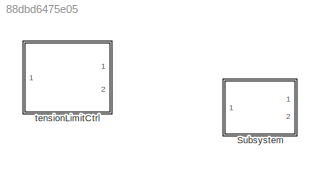
MODEL slx_88dbd6475e05
KIND library
CONFIG AbsTol = auto
CONFIG EnableMultiTasking = off
CONFIG FixedStep = auto
CONFIG MaxStep = auto
CONFIG MinStep = auto
CONFIG RelTol = 1e-3
CONFIG SampleTimeConstraint = Unconstrained
CONFIG SolverName = VariableStepAuto
CONFIG StartTime = 0.0
CONFIG StopTime = 10.0
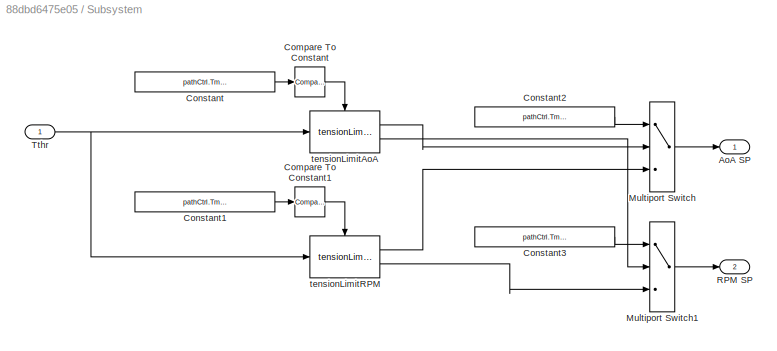
BLOCK [SubSystem] Subsystem
  Ports = [1, 2]
  RequestExecContextInheritance = off
BLOCK [Outport] Subsystem/AoA SP
BLOCK [Reference] Subsystem/Compare To Constant  REF=simulink/Logic and Bit
Operations/Compare
To Constant
  Ports = [1, 1]
  SourceBlock = simulink/Logic and Bit\nOperations/Compare\nTo Constant
  SourceProductBaseCode = SL
  SourceType = Compare To Constant
BLOCK [Reference] Subsystem/Compare To Constant1  REF=simulink/Logic and Bit
Operations/Compare
To Constant
  Ports = [1, 1]
  SourceBlock = simulink/Logic and Bit\nOperations/Compare\nTo Constant
  SourceProductBaseCode = SL
  SourceType = Compare To Constant
BLOCK [Constant] Subsystem/Constant
  Value = pathCtrl.TmaxCtrl.Value
BLOCK [Constant] Subsystem/Constant1
  Value = pathCtrl.TmaxCtrl.Value
BLOCK [Constant] Subsystem/Constant2
  Value = pathCtrl.TmaxCtrl.Value
BLOCK [Constant] Subsystem/Constant3
  Value = pathCtrl.TmaxCtrl.Value
BLOCK [MultiPortSwitch] Subsystem/Multiport Switch
  InputSameDT = off
  Inputs = 2
  Ports = [3, 1]
  SaturateOnIntegerOverflow = off
BLOCK [MultiPortSwitch] Subsystem/Multiport Switch1
  InputSameDT = off
  Inputs = 2
  Ports = [3, 1]
  SaturateOnIntegerOverflow = off
BLOCK [Outport] Subsystem/RPM SP
  Port = 2
BLOCK [Inport] Subsystem/Tthr
BLOCK [Reference] Subsystem/tensionLimitAoA  REF=tensionLimitAoA_cl/tensionLimitAoA
  Ports = [1, 2, 1]
  SourceBlock = tensionLimitAoA_cl/tensionLimitAoA
  SourceType = SubSystem
BLOCK [Reference] Subsystem/tensionLimitRPM  REF=tensionLimitRPM_cl/tensionLimitRPM
  Ports = [1, 2, 1]
  SourceBlock = tensionLimitRPM_cl/tensionLimitRPM
  SourceType = SubSystem
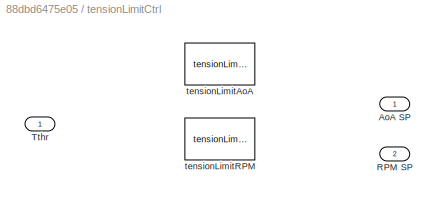
BLOCK [SubSystem] tensionLimitCtrl
  Ports = [1, 2]
  RequestExecContextInheritance = off
  Variant = on
BLOCK [Outport] tensionLimitCtrl/AoA SP
BLOCK [Outport] tensionLimitCtrl/RPM SP
  Port = 2
BLOCK [Inport] tensionLimitCtrl/Tthr
BLOCK [Reference] tensionLimitCtrl/tensionLimitAoA  REF=tensionLimitAoA_cl/tensionLimitAoA
  Ports = [1, 2, 1]
  SourceBlock = tensionLimitAoA_cl/tensionLimitAoA
  SourceType = SubSystem
BLOCK [Reference] tensionLimitCtrl/tensionLimitRPM  REF=tensionLimitRPM_cl/tensionLimitRPM
  Ports = [1, 2, 1]
  SourceBlock = tensionLimitRPM_cl/tensionLimitRPM
  SourceType = SubSystem
LINE Subsystem/Compare To Constant1:1 -> Subsystem/tensionLimitRPM:enable
LINE Subsystem/Compare To Constant:1 -> Subsystem/tensionLimitAoA:enable
LINE Subsystem/Constant1:1 -> Subsystem/Compare To Constant1:1
LINE Subsystem/Constant2:1 -> Subsystem/Multiport Switch:1
LINE Subsystem/Constant3:1 -> Subsystem/Multiport Switch1:1
LINE Subsystem/Constant:1 -> Subsystem/Compare To Constant:1
LINE Subsystem/Multiport Switch1:1 -> Subsystem/RPM SP:1
LINE Subsystem/Multiport Switch:1 -> Subsystem/AoA SP:1
NET Subsystem/Tthr:1 -> Subsystem/tensionLimitAoA:1, Subsystem/tensionLimitRPM:1
LINE Subsystem/tensionLimitAoA:1 -> Subsystem/Multiport Switch:2
LINE Subsystem/tensionLimitAoA:2 -> Subsystem/Multiport Switch1:2
LINE Subsystem/tensionLimitRPM:1 -> Subsystem/Multiport Switch:3
LINE Subsystem/tensionLimitRPM:2 -> Subsystem/Multiport Switch1:3
note: NET lines group one-source signal fan-out (src -> all destinations, sorted); 1:1 wires keep LINE
